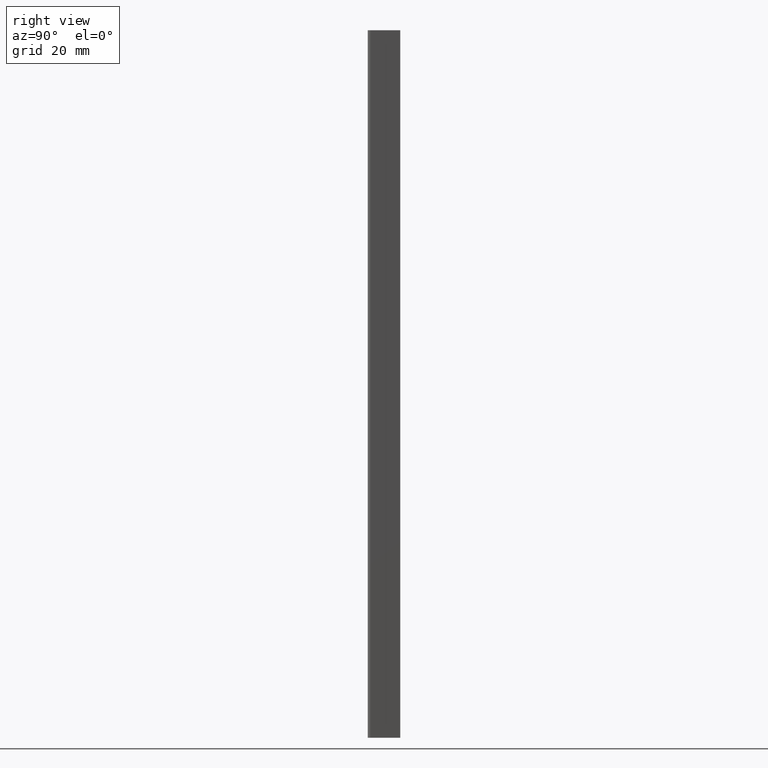
[diagram: clean part render]
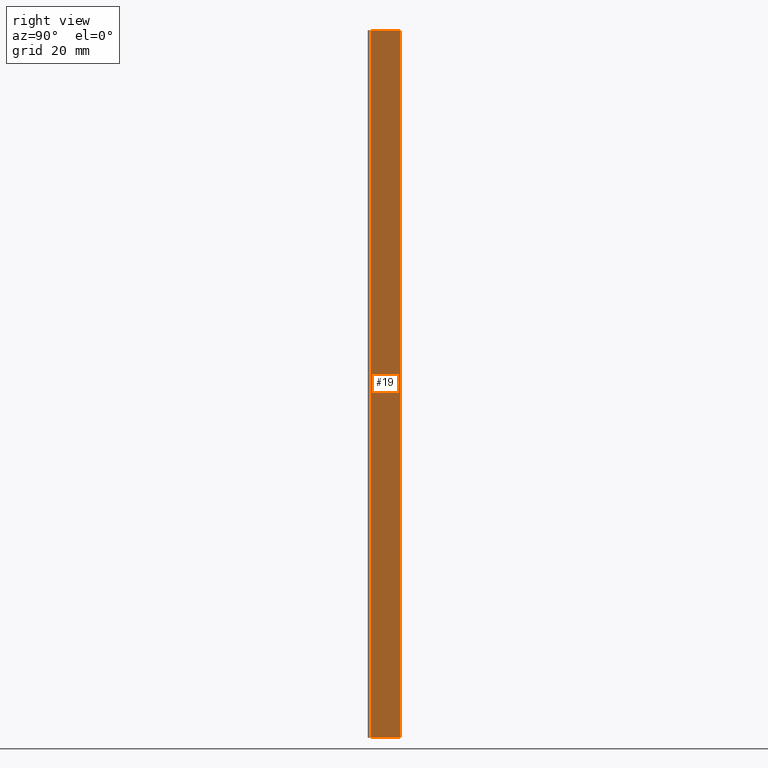
[diagram: same view with one face highlighted and labeled with its STEP entity id]
A machine part, right view. The second image highlights one B-rep face of the part: STEP entity #19.
In plain terms, the highlighted planar face has unit normal (-1, 0.0001, 0).
Its self-contained STEP definition (entity closure, byte-faithful):
#7 = EDGE_CURVE ( 'NONE', #236, #281, #305, .T. ) ;
#19 = ADVANCED_FACE ( 'NONE', ( #358 ), #352, .F. ) ;
#39 = EDGE_CURVE ( 'NONE', #275, #264, #409, .T. ) ;
#52 = EDGE_CURVE ( 'NONE', #264, #281, #456, .T. ) ;
#53 = EDGE_CURVE ( 'NONE', #275, #236, #501, .T. ) ;
#75 = VECTOR ( 'NONE', #342, 1000.000000000000000 ) ;
#97 = VECTOR ( 'NONE', #483, 1000.000000000000100 ) ;
#114 = VECTOR ( 'NONE', #439, 1000.000000000000000 ) ;
#124 = VECTOR ( 'NONE', #500, 1000.000000000000100 ) ;
#125 = AXIS2_PLACEMENT_3D ( 'NONE', #353, #347, #389 ) ;
#174 = EDGE_LOOP ( 'NONE', ( #200, #189, #228, #208 ) ) ;
#189 = ORIENTED_EDGE ( 'NONE', *, *, #7, .F. ) ;
#200 = ORIENTED_EDGE ( 'NONE', *, *, #52, .T. ) ;
#208 = ORIENTED_EDGE ( 'NONE', *, *, #39, .T. ) ;
#228 = ORIENTED_EDGE ( 'NONE', *, *, #53, .F. ) ;
#236 = VERTEX_POINT ( 'NONE', #490 ) ;
#264 = VERTEX_POINT ( 'NONE', #488 ) ;
#275 = VERTEX_POINT ( 'NONE', #546 ) ;
#281 = VERTEX_POINT ( 'NONE', #517 ) ;
#302 = CARTESIAN_POINT ( 'NONE',  ( 30.50046662530530400, 5.919794240752521500, 120.0000000000000000 ) ) ;
#305 = LINE ( 'NONE', #302, #75 ) ;
#342 = DIRECTION ( 'NONE',  ( -0.0000000000000000000, -0.0000000000000000000, -1.000000000000000000 ) ) ;
#347 = DIRECTION ( 'NONE',  ( -0.9999999964123750300, 8.470684716418423400E-005, 0.0000000000000000000 ) ) ;
#352 = PLANE ( 'NONE',  #125 ) ;
#353 = CARTESIAN_POINT ( 'NONE',  ( 30.50004224400101200, 0.9097942587265009900, 120.0000000000000000 ) ) ;
#358 = FACE_OUTER_BOUND ( 'NONE', #174, .T. ) ;
#389 = DIRECTION ( 'NONE',  ( -8.470684716418423400E-005, -0.9999999964123750300, 0.0000000000000000000 ) ) ;
#409 = LINE ( 'NONE', #423, #114 ) ;
#423 = CARTESIAN_POINT ( 'NONE',  ( 30.50004224400101200, 0.9097942587265009900, 120.0000000000000000 ) ) ;
#439 = DIRECTION ( 'NONE',  ( -0.0000000000000000000, -0.0000000000000000000, -1.000000000000000000 ) ) ;
#449 = CARTESIAN_POINT ( 'NONE',  ( 30.50004224400101200, 0.9097942587265009900, 0.0000000000000000000 ) ) ;
#456 = LINE ( 'NONE', #449, #124 ) ;
#483 = DIRECTION ( 'NONE',  ( 8.470684716418423400E-005, 0.9999999964123750300, 0.0000000000000000000 ) ) ;
#488 = CARTESIAN_POINT ( 'NONE',  ( 30.50004224400101200, 0.9097942587265009900, 0.0000000000000000000 ) ) ;
#490 = CARTESIAN_POINT ( 'NONE',  ( 30.50046662530530400, 5.919794240752521500, 120.0000000000000000 ) ) ;
#491 = CARTESIAN_POINT ( 'NONE',  ( 30.50004224400101200, 0.9097942587265009900, 120.0000000000000000 ) ) ;
#500 = DIRECTION ( 'NONE',  ( 8.470684716418423400E-005, 0.9999999964123750300, 0.0000000000000000000 ) ) ;
#501 = LINE ( 'NONE', #491, #97 ) ;
#517 = CARTESIAN_POINT ( 'NONE',  ( 30.50046662530530400, 5.919794240752521500, 0.0000000000000000000 ) ) ;
#546 = CARTESIAN_POINT ( 'NONE',  ( 30.50004224400101200, 0.9097942587265009900, 120.0000000000000000 ) ) ;